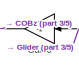
[diagram: root canvas - part 1/5, top center region]
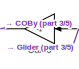
[diagram: root canvas - part 2/5, top center region]
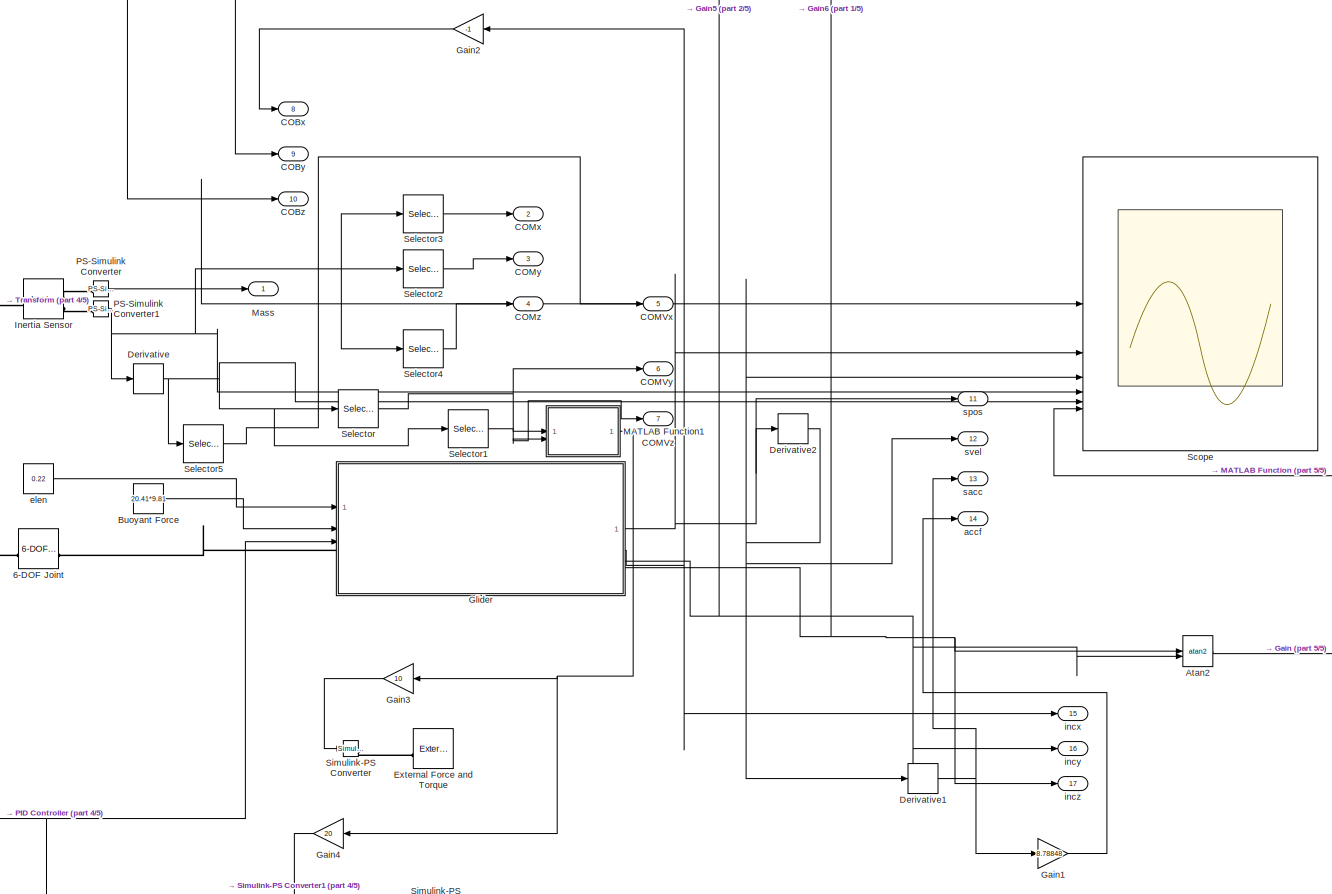
[diagram: root canvas - part 3/5, center side, full height]
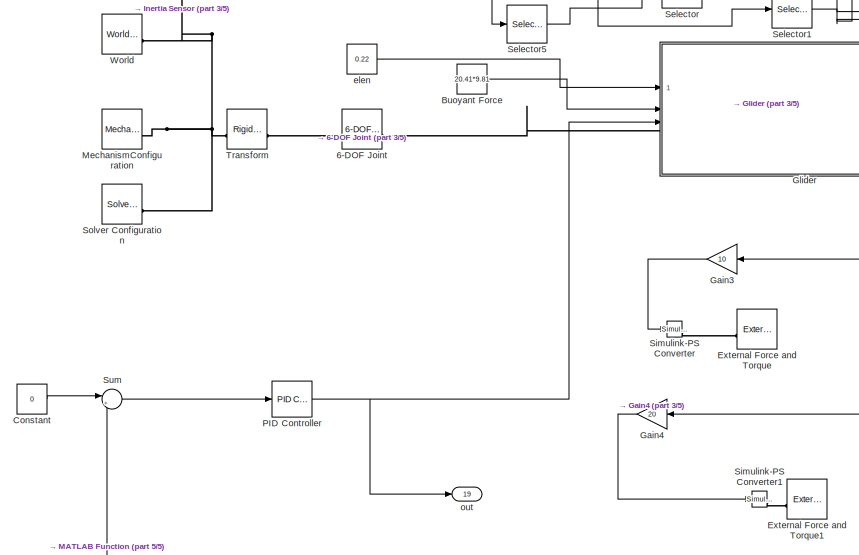
[diagram: root canvas - part 4/5, bottom left region]
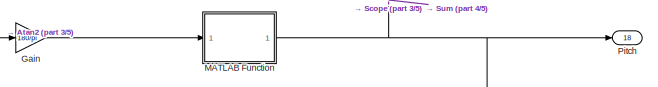
[diagram: root canvas - part 5/5, bottom right region]
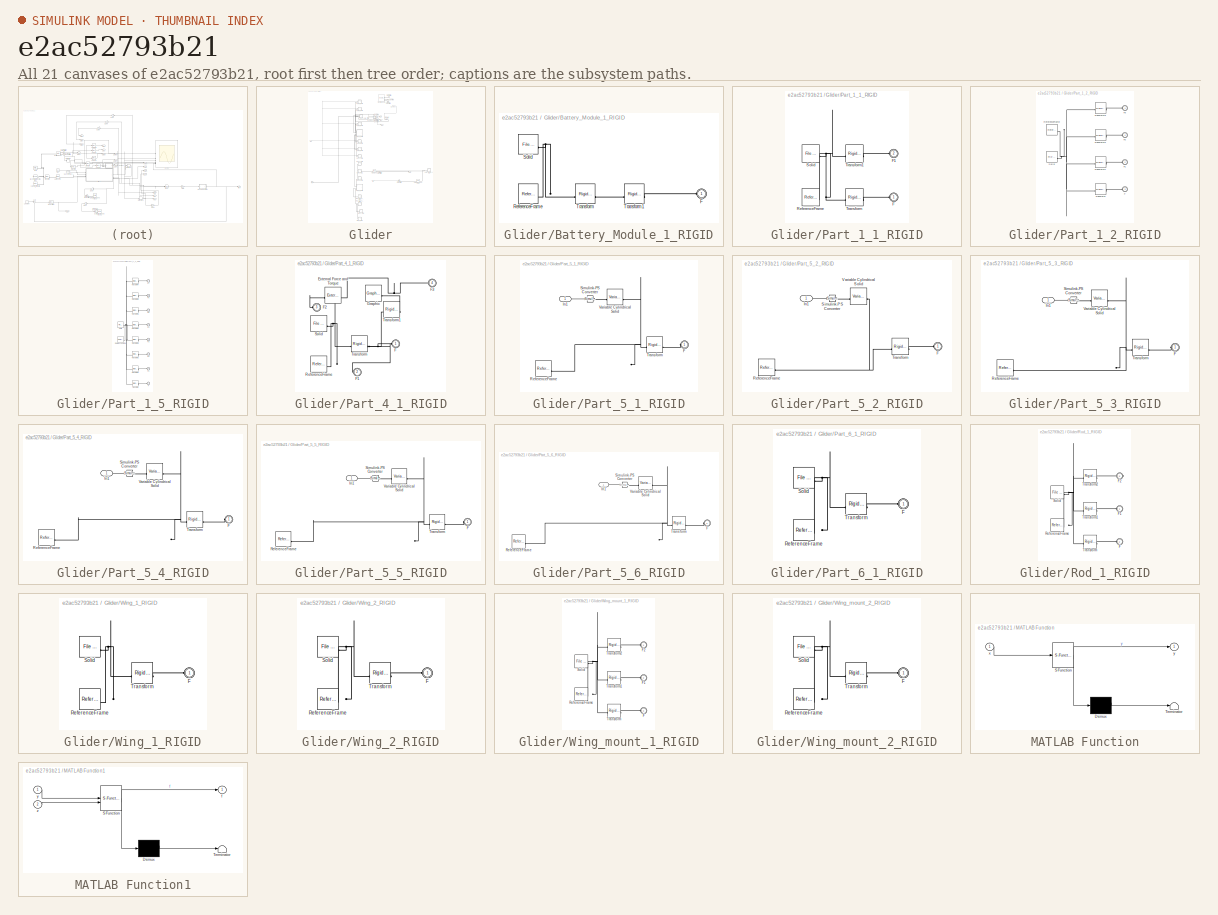
[diagram: thumbnail index - all 21 canvases of the model, root first then tree order]
MODEL slx_e2ac52793b21
KIND model
CONFIG AbsTol = auto
CONFIG EnableMultiTasking = off
CONFIG FixedStep = auto
CONFIG MaxStep = auto
CONFIG MinStep = auto
CONFIG RelTol = 1e-3
CONFIG SampleTimeConstraint = Unconstrained
CONFIG SolverName = VariableStepAuto
CONFIG StartTime = 0.0
CONFIG StopTime = 9
WORKSPACE source: external: MATLAB File  (data not in archive)
BLOCK [Reference] 6-DOF Joint  REF=sm_lib/Joints/6-DOF Joint
  SourceBlock = sm_lib/Joints/6-DOF Joint
  SourceType = 6-DOF Joint
BLOCK [Trigonometry] Atan2
  Operator = atan2
BLOCK [Constant] Buoyant Force
  Value = 20.41*9.81
BLOCK [Outport] COBx
  Port = 8
BLOCK [Outport] COBy
  Port = 9
BLOCK [Outport] COBz
  Port = 10
BLOCK [Outport] COMVx
  Port = 5
BLOCK [Outport] COMVy
  Port = 6
BLOCK [Outport] COMVz
  Port = 7
BLOCK [Outport] COMx
  Port = 2
BLOCK [Outport] COMy
  Port = 3
BLOCK [Outport] COMz
  Port = 4
BLOCK [Constant] Constant
  Value = 0
BLOCK [Derivative] Derivative
BLOCK [Derivative] Derivative1
BLOCK [Derivative] Derivative2
BLOCK [Reference] External Force and Torque  REF=sm_lib/Forces and
Torques/External Force
and Torque
  Commented = on
  SourceBlock = sm_lib/Forces and\nTorques/External Force\nand Torque
  SourceType = External Force\nand Torque
BLOCK [Reference] External Force and Torque1  REF=sm_lib/Forces and
Torques/External Force
and Torque
  Commented = on
  SourceBlock = sm_lib/Forces and\nTorques/External Force\nand Torque
  SourceType = External Force\nand Torque
BLOCK [Gain] Gain
  Gain = 180/pi
BLOCK [Gain] Gain1
  Gain = 8.78848
BLOCK [Gain] Gain2
  Gain = -1
  NameLocation = top
BLOCK [Gain] Gain3
  Commented = on
  Gain = 10
  NameLocation = top
BLOCK [Gain] Gain4
  Commented = on
  Gain = 20
  NameLocation = top
BLOCK [Gain] Gain5
  Gain = -1
  NameLocation = top
BLOCK [Gain] Gain6
  Gain = -1
  NameLocation = top
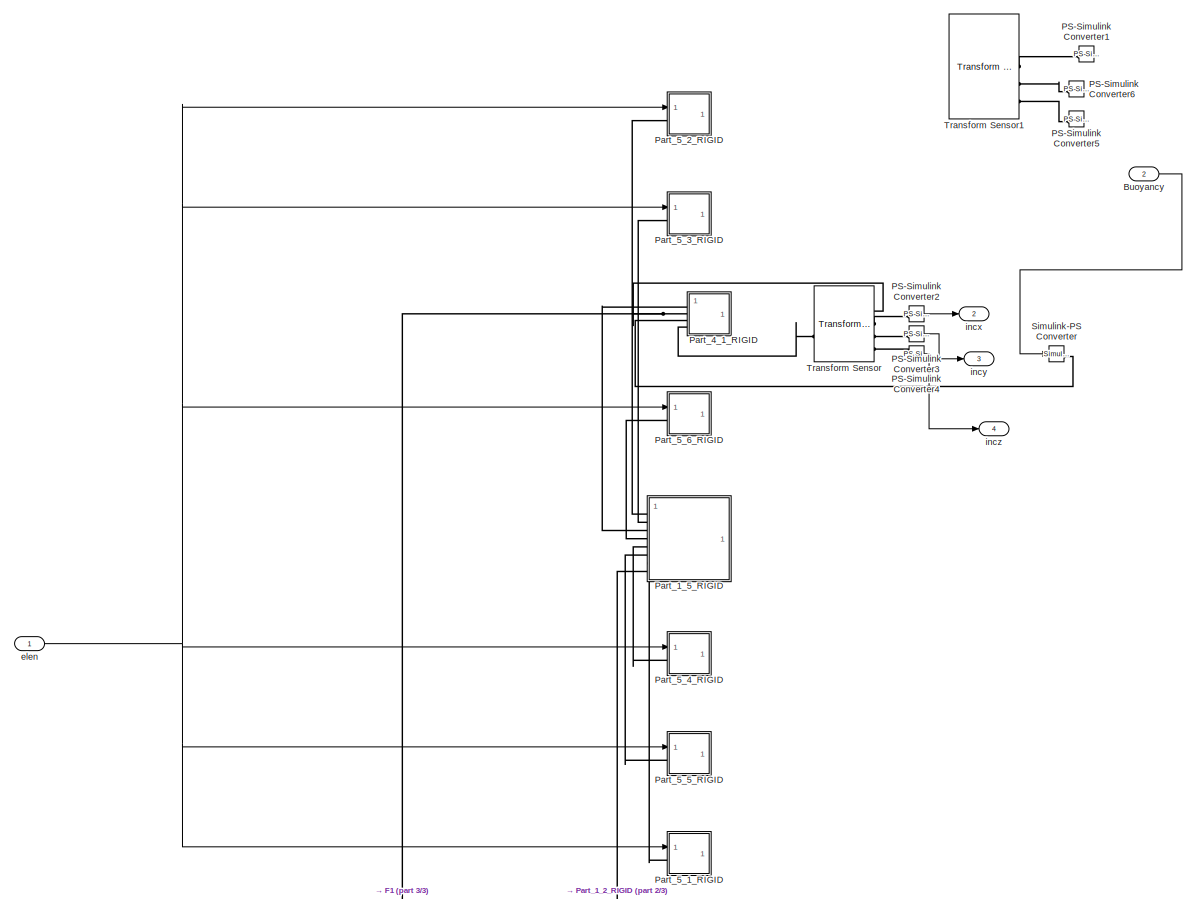
[diagram: Glider - part 1/3, top center region]
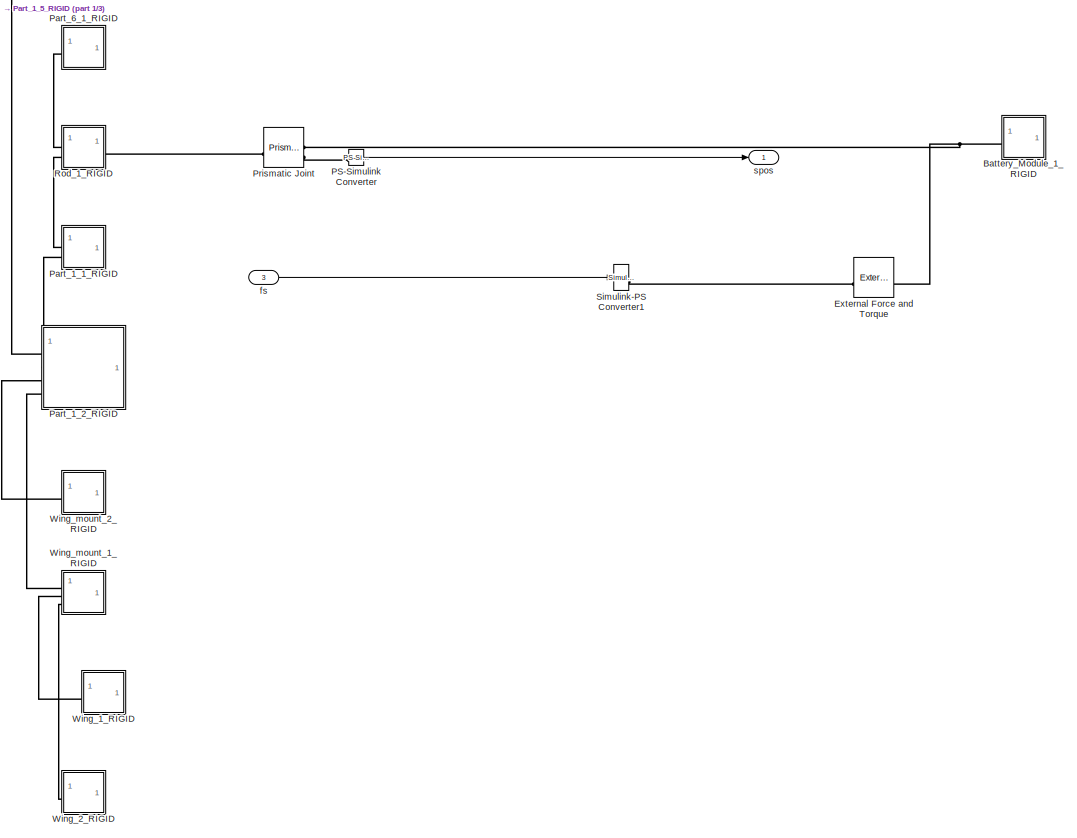
[diagram: Glider - part 2/3, bottom right region]
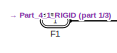
[diagram: Glider - part 3/3, bottom left region]
BLOCK [SubSystem] Glider
BLOCK [SubSystem] Glider/Battery_Module_1_RIGID
BLOCK [PMIOPort] Glider/Battery_Module_1_RIGID/F
  Side = Left
BLOCK [Reference] Glider/Battery_Module_1_RIGID/ReferenceFrame  REF=sm_lib/Frames and
Transforms/Reference
Frame
  SourceBlock = sm_lib/Frames and\nTransforms/Reference\nFrame
  SourceType = Reference\nFrame
BLOCK [Reference] Glider/Battery_Module_1_RIGID/Solid  REF=sm_lib/Body Elements/File Solid
  SourceBlock = sm_lib/Body Elements/File Solid
  SourceType = File Solid
BLOCK [Reference] Glider/Battery_Module_1_RIGID/Transform  REF=sm_lib/Frames and
Transforms/Rigid
Transform
  SourceBlock = sm_lib/Frames and\nTransforms/Rigid\nTransform
  SourceType = Rigid\nTransform
BLOCK [Reference] Glider/Battery_Module_1_RIGID/Transform1  REF=sm_lib/Frames and
Transforms/Rigid
Transform
  SourceBlock = sm_lib/Frames and\nTransforms/Rigid\nTransform
  SourceType = Rigid\nTransform
BLOCK [Inport] Glider/Buoyancy
  Port = 2
BLOCK [Reference] Glider/External Force and Torque  REF=sm_lib/Forces and
Torques/External Force
and Torque
  SourceBlock = sm_lib/Forces and\nTorques/External Force\nand Torque
  SourceType = External Force\nand Torque
BLOCK [PMIOPort] Glider/F1
  Side = Left
BLOCK [Reference] Glider/PS-Simulink Converter  REF=nesl_utility/PS-Simulink
Converter
  SourceBlock = nesl_utility/PS-Simulink\nConverter
  SourceType = PS-Simulink\nConverter
BLOCK [Reference] Glider/PS-Simulink Converter1  REF=nesl_utility/PS-Simulink
Converter
  Commented = on
  SourceBlock = nesl_utility/PS-Simulink\nConverter
  SourceType = PS-Simulink\nConverter
BLOCK [Reference] Glider/PS-Simulink Converter2  REF=nesl_utility/PS-Simulink
Converter
  SourceBlock = nesl_utility/PS-Simulink\nConverter
  SourceType = PS-Simulink\nConverter
BLOCK [Reference] Glider/PS-Simulink Converter3  REF=nesl_utility/PS-Simulink
Converter
  SourceBlock = nesl_utility/PS-Simulink\nConverter
  SourceType = PS-Simulink\nConverter
BLOCK [Reference] Glider/PS-Simulink Converter4  REF=nesl_utility/PS-Simulink
Converter
  SourceBlock = nesl_utility/PS-Simulink\nConverter
  SourceType = PS-Simulink\nConverter
BLOCK [Reference] Glider/PS-Simulink Converter5  REF=nesl_utility/PS-Simulink
Converter
  Commented = on
  SourceBlock = nesl_utility/PS-Simulink\nConverter
  SourceType = PS-Simulink\nConverter
BLOCK [Reference] Glider/PS-Simulink Converter6  REF=nesl_utility/PS-Simulink
Converter
  Commented = on
  SourceBlock = nesl_utility/PS-Simulink\nConverter
  SourceType = PS-Simulink\nConverter
BLOCK [SubSystem] Glider/Part_1_1_RIGID
BLOCK [PMIOPort] Glider/Part_1_1_RIGID/F
  Side = Left
BLOCK [PMIOPort] Glider/Part_1_1_RIGID/F1
  Port = 2
  Side = Left
BLOCK [Reference] Glider/Part_1_1_RIGID/ReferenceFrame  REF=sm_lib/Frames and
Transforms/Reference
Frame
  SourceBlock = sm_lib/Frames and\nTransforms/Reference\nFrame
  SourceType = Reference\nFrame
BLOCK [Reference] Glider/Part_1_1_RIGID/Solid  REF=sm_lib/Body Elements/File Solid
  SourceBlock = sm_lib/Body Elements/File Solid
  SourceType = File Solid
BLOCK [Reference] Glider/Part_1_1_RIGID/Transform  REF=sm_lib/Frames and
Transforms/Rigid
Transform
  SourceBlock = sm_lib/Frames and\nTransforms/Rigid\nTransform
  SourceType = Rigid\nTransform
BLOCK [Reference] Glider/Part_1_1_RIGID/Transform1  REF=sm_lib/Frames and
Transforms/Rigid
Transform
  SourceBlock = sm_lib/Frames and\nTransforms/Rigid\nTransform
  SourceType = Rigid\nTransform
BLOCK [SubSystem] Glider/Part_1_2_RIGID
BLOCK [PMIOPort] Glider/Part_1_2_RIGID/F
  Port = 3
  Side = Left
BLOCK [PMIOPort] Glider/Part_1_2_RIGID/F1
  Port = 2
  Side = Left
BLOCK [PMIOPort] Glider/Part_1_2_RIGID/F2
  Port = 4
  Side = Left
BLOCK [PMIOPort] Glider/Part_1_2_RIGID/F3
  Side = Left
BLOCK [Reference] Glider/Part_1_2_RIGID/ReferenceFrame  REF=sm_lib/Frames and
Transforms/Reference
Frame
  SourceBlock = sm_lib/Frames and\nTransforms/Reference\nFrame
  SourceType = Reference\nFrame
BLOCK [Reference] Glider/Part_1_2_RIGID/Solid  REF=sm_lib/Body Elements/File Solid
  SourceBlock = sm_lib/Body Elements/File Solid
  SourceType = File Solid
BLOCK [Reference] Glider/Part_1_2_RIGID/Transform  REF=sm_lib/Frames and
Transforms/Rigid
Transform
  SourceBlock = sm_lib/Frames and\nTransforms/Rigid\nTransform
  SourceType = Rigid\nTransform
BLOCK [Reference] Glider/Part_1_2_RIGID/Transform1  REF=sm_lib/Frames and
Transforms/Rigid
Transform
  SourceBlock = sm_lib/Frames and\nTransforms/Rigid\nTransform
  SourceType = Rigid\nTransform
BLOCK [Reference] Glider/Part_1_2_RIGID/Transform2  REF=sm_lib/Frames and
Transforms/Rigid
Transform
  SourceBlock = sm_lib/Frames and\nTransforms/Rigid\nTransform
  SourceType = Rigid\nTransform
BLOCK [Reference] Glider/Part_1_2_RIGID/Transform3  REF=sm_lib/Frames and
Transforms/Rigid
Transform
  SourceBlock = sm_lib/Frames and\nTransforms/Rigid\nTransform
  SourceType = Rigid\nTransform
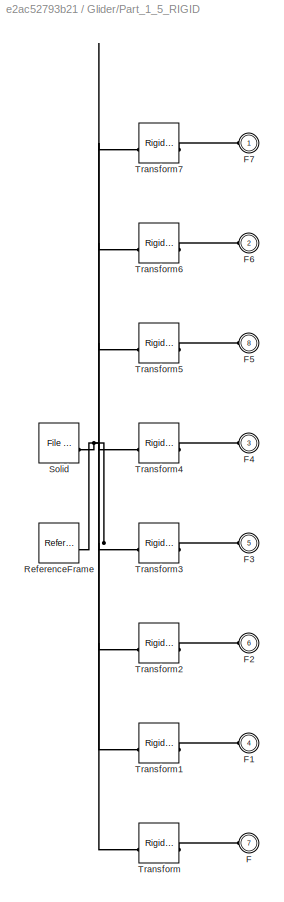
BLOCK [SubSystem] Glider/Part_1_5_RIGID
BLOCK [PMIOPort] Glider/Part_1_5_RIGID/F
  Port = 7
  Side = Left
BLOCK [PMIOPort] Glider/Part_1_5_RIGID/F1
  Port = 4
  Side = Left
BLOCK [PMIOPort] Glider/Part_1_5_RIGID/F2
  Port = 6
  Side = Left
BLOCK [PMIOPort] Glider/Part_1_5_RIGID/F3
  Port = 5
  Side = Left
BLOCK [PMIOPort] Glider/Part_1_5_RIGID/F4
  Port = 3
  Side = Left
BLOCK [PMIOPort] Glider/Part_1_5_RIGID/F5
  Port = 8
  Side = Left
BLOCK [PMIOPort] Glider/Part_1_5_RIGID/F6
  Port = 2
  Side = Left
BLOCK [PMIOPort] Glider/Part_1_5_RIGID/F7
  Side = Left
BLOCK [Reference] Glider/Part_1_5_RIGID/ReferenceFrame  REF=sm_lib/Frames and
Transforms/Reference
Frame
  SourceBlock = sm_lib/Frames and\nTransforms/Reference\nFrame
  SourceType = Reference\nFrame
BLOCK [Reference] Glider/Part_1_5_RIGID/Solid  REF=sm_lib/Body Elements/File Solid
  SourceBlock = sm_lib/Body Elements/File Solid
  SourceType = File Solid
BLOCK [Reference] Glider/Part_1_5_RIGID/Transform  REF=sm_lib/Frames and
Transforms/Rigid
Transform
  SourceBlock = sm_lib/Frames and\nTransforms/Rigid\nTransform
  SourceType = Rigid\nTransform
BLOCK [Reference] Glider/Part_1_5_RIGID/Transform1  REF=sm_lib/Frames and
Transforms/Rigid
Transform
  SourceBlock = sm_lib/Frames and\nTransforms/Rigid\nTransform
  SourceType = Rigid\nTransform
BLOCK [Reference] Glider/Part_1_5_RIGID/Transform2  REF=sm_lib/Frames and
Transforms/Rigid
Transform
  SourceBlock = sm_lib/Frames and\nTransforms/Rigid\nTransform
  SourceType = Rigid\nTransform
BLOCK [Reference] Glider/Part_1_5_RIGID/Transform3  REF=sm_lib/Frames and
Transforms/Rigid
Transform
  SourceBlock = sm_lib/Frames and\nTransforms/Rigid\nTransform
  SourceType = Rigid\nTransform
BLOCK [Reference] Glider/Part_1_5_RIGID/Transform4  REF=sm_lib/Frames and
Transforms/Rigid
Transform
  SourceBlock = sm_lib/Frames and\nTransforms/Rigid\nTransform
  SourceType = Rigid\nTransform
BLOCK [Reference] Glider/Part_1_5_RIGID/Transform5  REF=sm_lib/Frames and
Transforms/Rigid
Transform
  SourceBlock = sm_lib/Frames and\nTransforms/Rigid\nTransform
  SourceType = Rigid\nTransform
BLOCK [Reference] Glider/Part_1_5_RIGID/Transform6  REF=sm_lib/Frames and
Transforms/Rigid
Transform
  SourceBlock = sm_lib/Frames and\nTransforms/Rigid\nTransform
  SourceType = Rigid\nTransform
BLOCK [Reference] Glider/Part_1_5_RIGID/Transform7  REF=sm_lib/Frames and
Transforms/Rigid
Transform
  SourceBlock = sm_lib/Frames and\nTransforms/Rigid\nTransform
  SourceType = Rigid\nTransform
BLOCK [SubSystem] Glider/Part_4_1_RIGID
BLOCK [Reference] Glider/Part_4_1_RIGID/External Force and Torque  REF=sm_lib/Forces and
Torques/External Force
and Torque
  SourceBlock = sm_lib/Forces and\nTorques/External Force\nand Torque
  SourceType = External Force\nand Torque
BLOCK [PMIOPort] Glider/Part_4_1_RIGID/F
  Side = Left
BLOCK [PMIOPort] Glider/Part_4_1_RIGID/F1
  Port = 2
  Side = Left
BLOCK [PMIOPort] Glider/Part_4_1_RIGID/F2
  Port = 3
  Side = Left
BLOCK [PMIOPort] Glider/Part_4_1_RIGID/F3
  Port = 4
  Side = Left
BLOCK [Reference] Glider/Part_4_1_RIGID/Graphic  REF=sm_lib/Body Elements/Graphic
  SourceBlock = sm_lib/Body Elements/Graphic
  SourceType = Graphic
BLOCK [Reference] Glider/Part_4_1_RIGID/ReferenceFrame  REF=sm_lib/Frames and
Transforms/Reference
Frame
  SourceBlock = sm_lib/Frames and\nTransforms/Reference\nFrame
  SourceType = Reference\nFrame
BLOCK [Reference] Glider/Part_4_1_RIGID/Solid  REF=sm_lib/Body Elements/File Solid
  SourceBlock = sm_lib/Body Elements/File Solid
  SourceType = File Solid
BLOCK [Reference] Glider/Part_4_1_RIGID/Transform  REF=sm_lib/Frames and
Transforms/Rigid
Transform
  SourceBlock = sm_lib/Frames and\nTransforms/Rigid\nTransform
  SourceType = Rigid\nTransform
BLOCK [Reference] Glider/Part_4_1_RIGID/Transform1  REF=sm_lib/Frames and
Transforms/Rigid
Transform
  SourceBlock = sm_lib/Frames and\nTransforms/Rigid\nTransform
  SourceType = Rigid\nTransform
BLOCK [SubSystem] Glider/Part_5_1_RIGID
BLOCK [PMIOPort] Glider/Part_5_1_RIGID/F
  Side = Left
BLOCK [Inport] Glider/Part_5_1_RIGID/In1
BLOCK [Reference] Glider/Part_5_1_RIGID/ReferenceFrame  REF=sm_lib/Frames and
Transforms/Reference
Frame
  SourceBlock = sm_lib/Frames and\nTransforms/Reference\nFrame
  SourceType = Reference\nFrame
BLOCK [Reference] Glider/Part_5_1_RIGID/Simulink-PS Converter  REF=nesl_utility/Simulink-PS
Converter
  SourceBlock = nesl_utility/Simulink-PS\nConverter
  SourceType = Simulink-PS\nConverter
BLOCK [Reference] Glider/Part_5_1_RIGID/Transform  REF=sm_lib/Frames and
Transforms/Rigid
Transform
  SourceBlock = sm_lib/Frames and\nTransforms/Rigid\nTransform
  SourceType = Rigid\nTransform
BLOCK [Reference] Glider/Part_5_1_RIGID/Variable Cylindrical Solid  REF=sm_lib/Body Elements/Variable Mass/Variable
Cylindrical Solid
  SourceBlock = sm_lib/Body Elements/Variable Mass/Variable\nCylindrical Solid
  SourceType = Variable\nCylindrical Solid
BLOCK [SubSystem] Glider/Part_5_2_RIGID
BLOCK [PMIOPort] Glider/Part_5_2_RIGID/F
  Side = Left
BLOCK [Inport] Glider/Part_5_2_RIGID/In1
BLOCK [Reference] Glider/Part_5_2_RIGID/ReferenceFrame  REF=sm_lib/Frames and
Transforms/Reference
Frame
  SourceBlock = sm_lib/Frames and\nTransforms/Reference\nFrame
  SourceType = Reference\nFrame
BLOCK [Reference] Glider/Part_5_2_RIGID/Simulink-PS Converter  REF=nesl_utility/Simulink-PS
Converter
  SourceBlock = nesl_utility/Simulink-PS\nConverter
  SourceType = Simulink-PS\nConverter
BLOCK [Reference] Glider/Part_5_2_RIGID/Transform  REF=sm_lib/Frames and
Transforms/Rigid
Transform
  SourceBlock = sm_lib/Frames and\nTransforms/Rigid\nTransform
  SourceType = Rigid\nTransform
BLOCK [Reference] Glider/Part_5_2_RIGID/Variable Cylindrical Solid  REF=sm_lib/Body Elements/Variable Mass/Variable
Cylindrical Solid
  SourceBlock = sm_lib/Body Elements/Variable Mass/Variable\nCylindrical Solid
  SourceType = Variable\nCylindrical Solid
BLOCK [SubSystem] Glider/Part_5_3_RIGID
BLOCK [PMIOPort] Glider/Part_5_3_RIGID/F
  Side = Left
BLOCK [Inport] Glider/Part_5_3_RIGID/In1
BLOCK [Reference] Glider/Part_5_3_RIGID/ReferenceFrame  REF=sm_lib/Frames and
Transforms/Reference
Frame
  SourceBlock = sm_lib/Frames and\nTransforms/Reference\nFrame
  SourceType = Reference\nFrame
BLOCK [Reference] Glider/Part_5_3_RIGID/Simulink-PS Converter  REF=nesl_utility/Simulink-PS
Converter
  SourceBlock = nesl_utility/Simulink-PS\nConverter
  SourceType = Simulink-PS\nConverter
BLOCK [Reference] Glider/Part_5_3_RIGID/Transform  REF=sm_lib/Frames and
Transforms/Rigid
Transform
  SourceBlock = sm_lib/Frames and\nTransforms/Rigid\nTransform
  SourceType = Rigid\nTransform
BLOCK [Reference] Glider/Part_5_3_RIGID/Variable Cylindrical Solid  REF=sm_lib/Body Elements/Variable Mass/Variable
Cylindrical Solid
  SourceBlock = sm_lib/Body Elements/Variable Mass/Variable\nCylindrical Solid
  SourceType = Variable\nCylindrical Solid
BLOCK [SubSystem] Glider/Part_5_4_RIGID
BLOCK [PMIOPort] Glider/Part_5_4_RIGID/F
  Side = Left
BLOCK [Inport] Glider/Part_5_4_RIGID/In1
BLOCK [Reference] Glider/Part_5_4_RIGID/ReferenceFrame  REF=sm_lib/Frames and
Transforms/Reference
Frame
  SourceBlock = sm_lib/Frames and\nTransforms/Reference\nFrame
  SourceType = Reference\nFrame
BLOCK [Reference] Glider/Part_5_4_RIGID/Simulink-PS Converter  REF=nesl_utility/Simulink-PS
Converter
  SourceBlock = nesl_utility/Simulink-PS\nConverter
  SourceType = Simulink-PS\nConverter
BLOCK [Reference] Glider/Part_5_4_RIGID/Transform  REF=sm_lib/Frames and
Transforms/Rigid
Transform
  SourceBlock = sm_lib/Frames and\nTransforms/Rigid\nTransform
  SourceType = Rigid\nTransform
BLOCK [Reference] Glider/Part_5_4_RIGID/Variable Cylindrical Solid  REF=sm_lib/Body Elements/Variable Mass/Variable
Cylindrical Solid
  SourceBlock = sm_lib/Body Elements/Variable Mass/Variable\nCylindrical Solid
  SourceType = Variable\nCylindrical Solid
BLOCK [SubSystem] Glider/Part_5_5_RIGID
BLOCK [PMIOPort] Glider/Part_5_5_RIGID/F
  Side = Left
BLOCK [Inport] Glider/Part_5_5_RIGID/In1
BLOCK [Reference] Glider/Part_5_5_RIGID/ReferenceFrame  REF=sm_lib/Frames and
Transforms/Reference
Frame
  SourceBlock = sm_lib/Frames and\nTransforms/Reference\nFrame
  SourceType = Reference\nFrame
BLOCK [Reference] Glider/Part_5_5_RIGID/Simulink-PS Converter  REF=nesl_utility/Simulink-PS
Converter
  SourceBlock = nesl_utility/Simulink-PS\nConverter
  SourceType = Simulink-PS\nConverter
BLOCK [Reference] Glider/Part_5_5_RIGID/Transform  REF=sm_lib/Frames and
Transforms/Rigid
Transform
  SourceBlock = sm_lib/Frames and\nTransforms/Rigid\nTransform
  SourceType = Rigid\nTransform
BLOCK [Reference] Glider/Part_5_5_RIGID/Variable Cylindrical Solid  REF=sm_lib/Body Elements/Variable Mass/Variable
Cylindrical Solid
  SourceBlock = sm_lib/Body Elements/Variable Mass/Variable\nCylindrical Solid
  SourceType = Variable\nCylindrical Solid
BLOCK [SubSystem] Glider/Part_5_6_RIGID
BLOCK [PMIOPort] Glider/Part_5_6_RIGID/F
  Side = Left
BLOCK [Inport] Glider/Part_5_6_RIGID/In1
BLOCK [Reference] Glider/Part_5_6_RIGID/ReferenceFrame  REF=sm_lib/Frames and
Transforms/Reference
Frame
  SourceBlock = sm_lib/Frames and\nTransforms/Reference\nFrame
  SourceType = Reference\nFrame
BLOCK [Reference] Glider/Part_5_6_RIGID/Simulink-PS Converter  REF=nesl_utility/Simulink-PS
Converter
  SourceBlock = nesl_utility/Simulink-PS\nConverter
  SourceType = Simulink-PS\nConverter
BLOCK [Reference] Glider/Part_5_6_RIGID/Transform  REF=sm_lib/Frames and
Transforms/Rigid
Transform
  SourceBlock = sm_lib/Frames and\nTransforms/Rigid\nTransform
  SourceType = Rigid\nTransform
BLOCK [Reference] Glider/Part_5_6_RIGID/Variable Cylindrical Solid  REF=sm_lib/Body Elements/Variable Mass/Variable
Cylindrical Solid
  SourceBlock = sm_lib/Body Elements/Variable Mass/Variable\nCylindrical Solid
  SourceType = Variable\nCylindrical Solid
BLOCK [SubSystem] Glider/Part_6_1_RIGID
BLOCK [PMIOPort] Glider/Part_6_1_RIGID/F
  Side = Left
BLOCK [Reference] Glider/Part_6_1_RIGID/ReferenceFrame  REF=sm_lib/Frames and
Transforms/Reference
Frame
  SourceBlock = sm_lib/Frames and\nTransforms/Reference\nFrame
  SourceType = Reference\nFrame
BLOCK [Reference] Glider/Part_6_1_RIGID/Solid  REF=sm_lib/Body Elements/File Solid
  SourceBlock = sm_lib/Body Elements/File Solid
  SourceType = File Solid
BLOCK [Reference] Glider/Part_6_1_RIGID/Transform  REF=sm_lib/Frames and
Transforms/Rigid
Transform
  SourceBlock = sm_lib/Frames and\nTransforms/Rigid\nTransform
  SourceType = Rigid\nTransform
BLOCK [Reference] Glider/Prismatic Joint  REF=sm_lib/Joints/Prismatic
Joint
  SourceBlock = sm_lib/Joints/Prismatic\nJoint
  SourceType = Prismatic\nJoint
BLOCK [SubSystem] Glider/Rod_1_RIGID
BLOCK [PMIOPort] Glider/Rod_1_RIGID/F
  Port = 2
  Side = Left
BLOCK [PMIOPort] Glider/Rod_1_RIGID/F1
  Side = Left
BLOCK [PMIOPort] Glider/Rod_1_RIGID/F2
  Port = 3
  Side = Right
BLOCK [Reference] Glider/Rod_1_RIGID/ReferenceFrame  REF=sm_lib/Frames and
Transforms/Reference
Frame
  SourceBlock = sm_lib/Frames and\nTransforms/Reference\nFrame
  SourceType = Reference\nFrame
BLOCK [Reference] Glider/Rod_1_RIGID/Solid  REF=sm_lib/Body Elements/File Solid
  SourceBlock = sm_lib/Body Elements/File Solid
  SourceType = File Solid
BLOCK [Reference] Glider/Rod_1_RIGID/Transform  REF=sm_lib/Frames and
Transforms/Rigid
Transform
  SourceBlock = sm_lib/Frames and\nTransforms/Rigid\nTransform
  SourceType = Rigid\nTransform
BLOCK [Reference] Glider/Rod_1_RIGID/Transform1  REF=sm_lib/Frames and
Transforms/Rigid
Transform
  SourceBlock = sm_lib/Frames and\nTransforms/Rigid\nTransform
  SourceType = Rigid\nTransform
BLOCK [Reference] Glider/Rod_1_RIGID/Transform2  REF=sm_lib/Frames and
Transforms/Rigid
Transform
  SourceBlock = sm_lib/Frames and\nTransforms/Rigid\nTransform
  SourceType = Rigid\nTransform
BLOCK [Reference] Glider/Simulink-PS Converter  REF=nesl_utility/Simulink-PS
Converter
  SourceBlock = nesl_utility/Simulink-PS\nConverter
  SourceType = Simulink-PS\nConverter
BLOCK [Reference] Glider/Simulink-PS Converter1  REF=nesl_utility/Simulink-PS
Converter
  SourceBlock = nesl_utility/Simulink-PS\nConverter
  SourceType = Simulink-PS\nConverter
BLOCK [Reference] Glider/Transform Sensor  REF=sm_lib/Frames and
Transforms/Transform
Sensor
  SourceBlock = sm_lib/Frames and\nTransforms/Transform\nSensor
  SourceType = Transform\nSensor
BLOCK [Reference] Glider/Transform Sensor1  REF=sm_lib/Frames and
Transforms/Transform
Sensor
  Commented = on
  SourceBlock = sm_lib/Frames and\nTransforms/Transform\nSensor
  SourceType = Transform\nSensor
BLOCK [SubSystem] Glider/Wing_1_RIGID
BLOCK [PMIOPort] Glider/Wing_1_RIGID/F
  Side = Left
BLOCK [Reference] Glider/Wing_1_RIGID/ReferenceFrame  REF=sm_lib/Frames and
Transforms/Reference
Frame
  SourceBlock = sm_lib/Frames and\nTransforms/Reference\nFrame
  SourceType = Reference\nFrame
BLOCK [Reference] Glider/Wing_1_RIGID/Solid  REF=sm_lib/Body Elements/File Solid
  SourceBlock = sm_lib/Body Elements/File Solid
  SourceType = File Solid
BLOCK [Reference] Glider/Wing_1_RIGID/Transform  REF=sm_lib/Frames and
Transforms/Rigid
Transform
  SourceBlock = sm_lib/Frames and\nTransforms/Rigid\nTransform
  SourceType = Rigid\nTransform
BLOCK [SubSystem] Glider/Wing_2_RIGID
BLOCK [PMIOPort] Glider/Wing_2_RIGID/F
  Side = Left
BLOCK [Reference] Glider/Wing_2_RIGID/ReferenceFrame  REF=sm_lib/Frames and
Transforms/Reference
Frame
  SourceBlock = sm_lib/Frames and\nTransforms/Reference\nFrame
  SourceType = Reference\nFrame
BLOCK [Reference] Glider/Wing_2_RIGID/Solid  REF=sm_lib/Body Elements/File Solid
  SourceBlock = sm_lib/Body Elements/File Solid
  SourceType = File Solid
BLOCK [Reference] Glider/Wing_2_RIGID/Transform  REF=sm_lib/Frames and
Transforms/Rigid
Transform
  SourceBlock = sm_lib/Frames and\nTransforms/Rigid\nTransform
  SourceType = Rigid\nTransform
BLOCK [SubSystem] Glider/Wing_mount_1_RIGID
BLOCK [PMIOPort] Glider/Wing_mount_1_RIGID/F
  Port = 3
  Side = Left
BLOCK [PMIOPort] Glider/Wing_mount_1_RIGID/F1
  Port = 2
  Side = Left
BLOCK [PMIOPort] Glider/Wing_mount_1_RIGID/F2
  Side = Left
BLOCK [Reference] Glider/Wing_mount_1_RIGID/ReferenceFrame  REF=sm_lib/Frames and
Transforms/Reference
Frame
  SourceBlock = sm_lib/Frames and\nTransforms/Reference\nFrame
  SourceType = Reference\nFrame
BLOCK [Reference] Glider/Wing_mount_1_RIGID/Solid  REF=sm_lib/Body Elements/File Solid
  SourceBlock = sm_lib/Body Elements/File Solid
  SourceType = File Solid
BLOCK [Reference] Glider/Wing_mount_1_RIGID/Transform  REF=sm_lib/Frames and
Transforms/Rigid
Transform
  SourceBlock = sm_lib/Frames and\nTransforms/Rigid\nTransform
  SourceType = Rigid\nTransform
BLOCK [Reference] Glider/Wing_mount_1_RIGID/Transform1  REF=sm_lib/Frames and
Transforms/Rigid
Transform
  SourceBlock = sm_lib/Frames and\nTransforms/Rigid\nTransform
  SourceType = Rigid\nTransform
BLOCK [Reference] Glider/Wing_mount_1_RIGID/Transform2  REF=sm_lib/Frames and
Transforms/Rigid
Transform
  SourceBlock = sm_lib/Frames and\nTransforms/Rigid\nTransform
  SourceType = Rigid\nTransform
BLOCK [SubSystem] Glider/Wing_mount_2_RIGID
BLOCK [PMIOPort] Glider/Wing_mount_2_RIGID/F
  Side = Left
BLOCK [Reference] Glider/Wing_mount_2_RIGID/ReferenceFrame  REF=sm_lib/Frames and
Transforms/Reference
Frame
  SourceBlock = sm_lib/Frames and\nTransforms/Reference\nFrame
  SourceType = Reference\nFrame
BLOCK [Reference] Glider/Wing_mount_2_RIGID/Solid  REF=sm_lib/Body Elements/File Solid
  SourceBlock = sm_lib/Body Elements/File Solid
  SourceType = File Solid
BLOCK [Reference] Glider/Wing_mount_2_RIGID/Transform  REF=sm_lib/Frames and
Transforms/Rigid
Transform
  SourceBlock = sm_lib/Frames and\nTransforms/Rigid\nTransform
  SourceType = Rigid\nTransform
BLOCK [Inport] Glider/elen
BLOCK [Inport] Glider/fs
  Port = 3
BLOCK [Outport] Glider/incx
  Port = 2
BLOCK [Outport] Glider/incy
  Port = 3
BLOCK [Outport] Glider/incz
  Port = 4
BLOCK [Outport] Glider/spos
BLOCK [Reference] Inertia Sensor  REF=sm_lib/Body Elements/Inertia Sensor
  SourceBlock = sm_lib/Body Elements/Inertia Sensor
  SourceType = Inertia Sensor
BLOCK [SubSystem] MATLAB Function
  ErrorFcn = Stateflow.Translate.translate
  LibrarySourceBlock = simulink/User-Defined\nFunctions/MATLAB Function
  PermitHierarchicalResolution = ExplicitOnly
  SFBlockType = MATLAB Function
  TreatAsAtomicUnit = on
BLOCK [Demux] MATLAB Function/ Demux 
  Outputs = 1
BLOCK [S-Function] MATLAB Function/ SFunction 
  EnableBusSupport = on
  FunctionName = sf_sfun
  PortCounts = [1 2]
  SFcnIsStateOwnerBlock = off
  SFunctionDeploymentMode = off
  Tag = Stateflow S-Function 1
BLOCK [Terminator] MATLAB Function/ Terminator 
BLOCK [Inport] MATLAB Function/x
BLOCK [Outport] MATLAB Function/y
BLOCK [SubSystem] MATLAB Function1
  ErrorFcn = Stateflow.Translate.translate
  LibrarySourceBlock = simulink/User-Defined\nFunctions/MATLAB Function
  PermitHierarchicalResolution = ExplicitOnly
  SFBlockType = MATLAB Function
  TreatAsAtomicUnit = on
BLOCK [Demux] MATLAB Function1/ Demux 
  Outputs = 1
BLOCK [S-Function] MATLAB Function1/ SFunction 
  EnableBusSupport = on
  FunctionName = sf_sfun
  PortCounts = [2 2]
  SFcnIsStateOwnerBlock = off
  SFunctionDeploymentMode = off
  Tag = Stateflow S-Function 4
BLOCK [Terminator] MATLAB Function1/ Terminator 
BLOCK [Outport] MATLAB Function1/f
BLOCK [Inport] MATLAB Function1/y
BLOCK [Inport] MATLAB Function1/z
  Port = 2
BLOCK [Outport] Mass
BLOCK [Reference] MechanismConfiguration  REF=sm_lib/Utilities/Mechanism
Configuration
  SourceBlock = sm_lib/Utilities/Mechanism\nConfiguration
  SourceType = Mechanism\nConfiguration
BLOCK [Reference] PID Controller  REF=slpidlib/PID Controller
  LibrarySourceBlock = simulink/Continuous/PID Controller
  SourceBlock = slpidlib/PID Controller
  SourceType = PID 1dof
BLOCK [Reference] PS-Simulink Converter  REF=nesl_utility/PS-Simulink
Converter
  SourceBlock = nesl_utility/PS-Simulink\nConverter
  SourceType = PS-Simulink\nConverter
BLOCK [Reference] PS-Simulink Converter1  REF=nesl_utility/PS-Simulink
Converter
  SourceBlock = nesl_utility/PS-Simulink\nConverter
  SourceType = PS-Simulink\nConverter
BLOCK [Outport] Pitch
  Port = 18
BLOCK [Scope] Scope
  Floating = off
  NumInputPorts = 6
  ScopeSpecificationString = Simulink.scopes.TimeScopeBlockCfg('CurrentConfiguration', extmgr.ConfigurationSet(extmgr.Configuration('Core','General UI',true),extmgr.Configuration('Core','Source UI',true),extmgr.Configuration('Sources','WiredSimulink',true),extmgr.Configuration('Visuals','Time Domain',true,'SerializedDisplays',{struct('MinYLimReal','-12.48603','MaxYLimReal','112.37427','YLabelReal','','MinYLimMag','0.00000','M...<+2000ch>
BLOCK [Selector] Selector
  IndexOptions = Index vector (dialog)
  Indices = 2
  InputPortWidth = 3
  OutputSizes = 1
BLOCK [Selector] Selector1
  IndexOptions = Index vector (dialog)
  Indices = 3
  InputPortWidth = 3
  OutputSizes = 1
BLOCK [Selector] Selector2
  IndexOptions = Index vector (dialog)
  Indices = 2
  InputPortWidth = 3
  OutputSizes = 1
BLOCK [Selector] Selector3
  IndexOptions = Index vector (dialog)
  Indices = 1
  InputPortWidth = 3
  OutputSizes = 1
BLOCK [Selector] Selector4
  IndexOptions = Index vector (dialog)
  Indices = 3
  InputPortWidth = 3
  OutputSizes = 1
BLOCK [Selector] Selector5
  IndexOptions = Index vector (dialog)
  Indices = 1
  InputPortWidth = 3
  OutputSizes = 1
BLOCK [Reference] Simulink-PS Converter  REF=nesl_utility/Simulink-PS
Converter
  Commented = on
  SourceBlock = nesl_utility/Simulink-PS\nConverter
  SourceType = Simulink-PS\nConverter
BLOCK [Reference] Simulink-PS Converter1  REF=nesl_utility/Simulink-PS
Converter
  Commented = on
  SourceBlock = nesl_utility/Simulink-PS\nConverter
  SourceType = Simulink-PS\nConverter
BLOCK [Reference] Solver Configuration  REF=nesl_utility/Solver
Configuration
  SourceBlock = nesl_utility/Solver\nConfiguration
  SourceType = Solver\nConfiguration
BLOCK [Sum] Sum
  Inputs = |+-
BLOCK [Reference] Transform  REF=sm_lib/Frames and
Transforms/Rigid
Transform
  SourceBlock = sm_lib/Frames and\nTransforms/Rigid\nTransform
  SourceType = Rigid\nTransform
BLOCK [Reference] World  REF=sm_lib/Frames and
Transforms/World Frame
  SourceBlock = sm_lib/Frames and\nTransforms/World Frame
  SourceType = World Frame
BLOCK [Outport] accf
  Port = 14
BLOCK [Constant] elen
  Value = 0.22
BLOCK [Outport] incx
  Port = 15
BLOCK [Outport] incy
  Port = 16
BLOCK [Outport] incz
  Port = 17
BLOCK [Outport] out
  Port = 19
BLOCK [Outport] sacc
  Port = 13
BLOCK [Outport] spos
  Port = 11
BLOCK [Outport] svel
  Port = 12
LINE Atan2:1 -> Gain:1
LINE Buoyant Force:1 -> Glider:2
LINE Constant:1 -> Sum:1
NET Derivative1:1 -> Gain1:1, sacc:1
NET Derivative2:1 -> Derivative1:1, Scope:3, svel:1
NET Derivative:1 -> Scope:5, Selector1:1, Selector5:1, Selector:1
LINE Gain1:1 -> accf:1
LINE Gain2:1 -> COBx:1
LINE Gain3:1 -> Simulink-PS Converter:1
LINE Gain4:1 -> Simulink-PS Converter1:1
LINE Gain5:1 -> COBy:1
LINE Gain6:1 -> COBz:1
LINE Gain:1 -> MATLAB Function:1
LINE Glider/Buoyancy:1 -> Glider/Simulink-PS Converter:1
LINE Glider/PS-Simulink Converter2:1 -> Glider/incx:1
LINE Glider/PS-Simulink Converter3:1 -> Glider/incy:1
LINE Glider/PS-Simulink Converter4:1 -> Glider/incz:1
LINE Glider/PS-Simulink Converter:1 -> Glider/spos:1
LINE Glider/Part_5_1_RIGID/In1:1 -> Glider/Part_5_1_RIGID/Simulink-PS Converter:1
LINE Glider/Part_5_2_RIGID/In1:1 -> Glider/Part_5_2_RIGID/Simulink-PS Converter:1
LINE Glider/Part_5_3_RIGID/In1:1 -> Glider/Part_5_3_RIGID/Simulink-PS Converter:1
LINE Glider/Part_5_4_RIGID/In1:1 -> Glider/Part_5_4_RIGID/Simulink-PS Converter:1
LINE Glider/Part_5_5_RIGID/In1:1 -> Glider/Part_5_5_RIGID/Simulink-PS Converter:1
LINE Glider/Part_5_6_RIGID/In1:1 -> Glider/Part_5_6_RIGID/Simulink-PS Converter:1
NET Glider/elen:1 -> Glider/Part_5_1_RIGID:1, Glider/Part_5_2_RIGID:1, Glider/Part_5_3_RIGID:1, Glider/Part_5_4_RIGID:1, Glider/Part_5_5_RIGID:1, Glider/Part_5_6_RIGID:1
LINE Glider/fs:1 -> Glider/Simulink-PS Converter1:1
NET Glider:1 -> Derivative2:1, Scope:2, spos:1
NET Glider:2 -> Gain2:1, incx:1
NET Glider:3 -> Atan2:2, Gain5:1, incy:1
NET Glider:4 -> Atan2:1, Gain6:1, incz:1
NET MATLAB Function1:1 -> Gain3:1, Gain4:1
NET MATLAB Function:1 -> Pitch:1, Scope:6, Sum:2
NET PID Controller:1 -> Glider:3, out:1
NET PS-Simulink Converter1:1 -> Derivative:1, Scope:4, Selector2:1, Selector3:1, Selector4:1
NET PS-Simulink Converter:1 -> Mass:1, Scope:1
NET Selector1:1 -> COMVz:1, MATLAB Function1:2
LINE Selector2:1 -> COMy:1
LINE Selector3:1 -> COMx:1
LINE Selector4:1 -> COMz:1
LINE Selector5:1 -> COMVx:1
NET Selector:1 -> COMVy:1, MATLAB Function1:1
LINE Sum:1 -> PID Controller:1
LINE elen:1 -> Glider:1
PLINE 6-DOF Joint:LConn1 -- Transform:RConn1
PLINE 6-DOF Joint:RConn1 -- Glider:LConn1
PLINE External Force and Torque1:LConn1 -- Simulink-PS Converter1:RConn1
PLINE External Force and Torque:LConn1 -- Simulink-PS Converter:RConn1
PLINE Glider/Battery_Module_1_RIGID/F:RConn1 -- Glider/Battery_Module_1_RIGID/Transform1:RConn1
PNET net1: Glider/Battery_Module_1_RIGID/ReferenceFrame:RConn1 -- Glider/Battery_Module_1_RIGID/Solid:RConn1 -- Glider/Battery_Module_1_RIGID/Transform:LConn1
PLINE Glider/Battery_Module_1_RIGID/Transform1:LConn1 -- Glider/Battery_Module_1_RIGID/Transform:RConn1
PNET net2: Glider/Battery_Module_1_RIGID:LConn1 -- Glider/External Force and Torque:RConn1 -- Glider/Prismatic Joint:RConn1
PLINE Glider/External Force and Torque:LConn1 -- Glider/Simulink-PS Converter1:RConn1
PNET net3: Glider/F1:RConn1 -- Glider/Part_4_1_RIGID:LConn2 -- Glider/Transform Sensor:RConn1
PLINE Glider/PS-Simulink Converter1:LConn1 -- Glider/Transform Sensor1:RConn2
PLINE Glider/PS-Simulink Converter2:LConn1 -- Glider/Transform Sensor:RConn2
PLINE Glider/PS-Simulink Converter3:LConn1 -- Glider/Transform Sensor:RConn3
PLINE Glider/PS-Simulink Converter4:LConn1 -- Glider/Transform Sensor:RConn4
PLINE Glider/PS-Simulink Converter5:LConn1 -- Glider/Transform Sensor1:RConn4
PLINE Glider/PS-Simulink Converter6:LConn1 -- Glider/Transform Sensor1:RConn3
PLINE Glider/PS-Simulink Converter:LConn1 -- Glider/Prismatic Joint:RConn2
PLINE Glider/Part_1_1_RIGID/F1:RConn1 -- Glider/Part_1_1_RIGID/Transform1:RConn1
PLINE Glider/Part_1_1_RIGID/F:RConn1 -- Glider/Part_1_1_RIGID/Transform:RConn1
PNET net4: Glider/Part_1_1_RIGID/ReferenceFrame:RConn1 -- Glider/Part_1_1_RIGID/Solid:RConn1 -- Glider/Part_1_1_RIGID/Transform1:LConn1 -- Glider/Part_1_1_RIGID/Transform:LConn1
PLINE Glider/Part_1_1_RIGID:LConn1 -- Glider/Rod_1_RIGID:LConn2
PLINE Glider/Part_1_1_RIGID:LConn2 -- Glider/Part_1_2_RIGID:LConn2
PLINE Glider/Part_1_2_RIGID/F1:RConn1 -- Glider/Part_1_2_RIGID/Transform1:RConn1
PLINE Glider/Part_1_2_RIGID/F2:RConn1 -- Glider/Part_1_2_RIGID/Transform2:RConn1
PLINE Glider/Part_1_2_RIGID/F3:RConn1 -- Glider/Part_1_2_RIGID/Transform3:RConn1
PLINE Glider/Part_1_2_RIGID/F:RConn1 -- Glider/Part_1_2_RIGID/Transform:RConn1
PNET net5: Glider/Part_1_2_RIGID/ReferenceFrame:RConn1 -- Glider/Part_1_2_RIGID/Solid:RConn1 -- Glider/Part_1_2_RIGID/Transform1:LConn1 -- Glider/Part_1_2_RIGID/Transform2:LConn1 -- Glider/Part_1_2_RIGID/Transform3:LConn1 -- Glider/Part_1_2_RIGID/Transform:LConn1
PLINE Glider/Part_1_2_RIGID:LConn1 -- Glider/Part_1_5_RIGID:LConn8
PLINE Glider/Part_1_2_RIGID:LConn3 -- Glider/Wing_mount_2_RIGID:LConn1
PLINE Glider/Part_1_2_RIGID:LConn4 -- Glider/Wing_mount_1_RIGID:LConn1
PLINE Glider/Part_1_5_RIGID/F1:RConn1 -- Glider/Part_1_5_RIGID/Transform1:RConn1
PLINE Glider/Part_1_5_RIGID/F2:RConn1 -- Glider/Part_1_5_RIGID/Transform2:RConn1
PLINE Glider/Part_1_5_RIGID/F3:RConn1 -- Glider/Part_1_5_RIGID/Transform3:RConn1
PLINE Glider/Part_1_5_RIGID/F4:RConn1 -- Glider/Part_1_5_RIGID/Transform4:RConn1
PLINE Glider/Part_1_5_RIGID/F5:RConn1 -- Glider/Part_1_5_RIGID/Transform5:RConn1
PLINE Glider/Part_1_5_RIGID/F6:RConn1 -- Glider/Part_1_5_RIGID/Transform6:RConn1
PLINE Glider/Part_1_5_RIGID/F7:RConn1 -- Glider/Part_1_5_RIGID/Transform7:RConn1
PLINE Glider/Part_1_5_RIGID/F:RConn1 -- Glider/Part_1_5_RIGID/Transform:RConn1
PNET net6: Glider/Part_1_5_RIGID/ReferenceFrame:RConn1 -- Glider/Part_1_5_RIGID/Solid:RConn1 -- Glider/Part_1_5_RIGID/Transform1:LConn1 -- Glider/Part_1_5_RIGID/Transform2:LConn1 -- Glider/Part_1_5_RIGID/Transform3:LConn1 -- Glider/Part_1_5_RIGID/Transform4:LConn1 -- Glider/Part_1_5_RIGID/Transform5:LConn1 -- Glider/Part_1_5_RIGID/Transform6:LConn1 -- Glider/Part_1_5_RIGID/Transform7:LConn1 -- Glider/Part_1_5_RIGID/Transform:LConn1
PLINE Glider/Part_1_5_RIGID:LConn1 -- Glider/Part_5_2_RIGID:LConn1
PLINE Glider/Part_1_5_RIGID:LConn2 -- Glider/Part_5_3_RIGID:LConn1
PLINE Glider/Part_1_5_RIGID:LConn3 -- Glider/Part_4_1_RIGID:LConn1
PLINE Glider/Part_1_5_RIGID:LConn4 -- Glider/Part_5_6_RIGID:LConn1
PLINE Glider/Part_1_5_RIGID:LConn5 -- Glider/Part_5_4_RIGID:LConn1
PLINE Glider/Part_1_5_RIGID:LConn6 -- Glider/Part_5_5_RIGID:LConn1
PLINE Glider/Part_1_5_RIGID:LConn7 -- Glider/Part_5_1_RIGID:LConn1
PLINE Glider/Part_4_1_RIGID/External Force and Torque:LConn1 -- Glider/Part_4_1_RIGID/F2:RConn1
PNET net7: Glider/Part_4_1_RIGID/External Force and Torque:RConn1 -- Glider/Part_4_1_RIGID/F3:RConn1 -- Glider/Part_4_1_RIGID/Graphic:RConn1 -- Glider/Part_4_1_RIGID/Transform1:RConn1
PNET net8: Glider/Part_4_1_RIGID/F1:RConn1 -- Glider/Part_4_1_RIGID/F:RConn1 -- Glider/Part_4_1_RIGID/Transform1:LConn1 -- Glider/Part_4_1_RIGID/Transform:RConn1
PNET net9: Glider/Part_4_1_RIGID/ReferenceFrame:RConn1 -- Glider/Part_4_1_RIGID/Solid:RConn1 -- Glider/Part_4_1_RIGID/Transform:LConn1
PLINE Glider/Part_4_1_RIGID:LConn3 -- Glider/Simulink-PS Converter:RConn1
PLINE Glider/Part_4_1_RIGID:LConn4 -- Glider/Transform Sensor:LConn1
PLINE Glider/Part_5_1_RIGID/F:RConn1 -- Glider/Part_5_1_RIGID/Transform:RConn1
PNET net10: Glider/Part_5_1_RIGID/ReferenceFrame:RConn1 -- Glider/Part_5_1_RIGID/Transform:LConn1 -- Glider/Part_5_1_RIGID/Variable Cylindrical Solid:RConn1
PLINE Glider/Part_5_1_RIGID/Simulink-PS Converter:RConn1 -- Glider/Part_5_1_RIGID/Variable Cylindrical Solid:LConn1
PLINE Glider/Part_5_2_RIGID/F:RConn1 -- Glider/Part_5_2_RIGID/Transform:RConn1
PNET net11: Glider/Part_5_2_RIGID/ReferenceFrame:RConn1 -- Glider/Part_5_2_RIGID/Transform:LConn1 -- Glider/Part_5_2_RIGID/Variable Cylindrical Solid:RConn1
PLINE Glider/Part_5_2_RIGID/Simulink-PS Converter:RConn1 -- Glider/Part_5_2_RIGID/Variable Cylindrical Solid:LConn1
PLINE Glider/Part_5_3_RIGID/F:RConn1 -- Glider/Part_5_3_RIGID/Transform:RConn1
PNET net12: Glider/Part_5_3_RIGID/ReferenceFrame:RConn1 -- Glider/Part_5_3_RIGID/Transform:LConn1 -- Glider/Part_5_3_RIGID/Variable Cylindrical Solid:RConn1
PLINE Glider/Part_5_3_RIGID/Simulink-PS Converter:RConn1 -- Glider/Part_5_3_RIGID/Variable Cylindrical Solid:LConn1
PLINE Glider/Part_5_4_RIGID/F:RConn1 -- Glider/Part_5_4_RIGID/Transform:RConn1
PNET net13: Glider/Part_5_4_RIGID/ReferenceFrame:RConn1 -- Glider/Part_5_4_RIGID/Transform:LConn1 -- Glider/Part_5_4_RIGID/Variable Cylindrical Solid:RConn1
PLINE Glider/Part_5_4_RIGID/Simulink-PS Converter:RConn1 -- Glider/Part_5_4_RIGID/Variable Cylindrical Solid:LConn1
PLINE Glider/Part_5_5_RIGID/F:RConn1 -- Glider/Part_5_5_RIGID/Transform:RConn1
PNET net14: Glider/Part_5_5_RIGID/ReferenceFrame:RConn1 -- Glider/Part_5_5_RIGID/Transform:LConn1 -- Glider/Part_5_5_RIGID/Variable Cylindrical Solid:RConn1
PLINE Glider/Part_5_5_RIGID/Simulink-PS Converter:RConn1 -- Glider/Part_5_5_RIGID/Variable Cylindrical Solid:LConn1
PLINE Glider/Part_5_6_RIGID/F:RConn1 -- Glider/Part_5_6_RIGID/Transform:RConn1
PNET net15: Glider/Part_5_6_RIGID/ReferenceFrame:RConn1 -- Glider/Part_5_6_RIGID/Transform:LConn1 -- Glider/Part_5_6_RIGID/Variable Cylindrical Solid:RConn1
PLINE Glider/Part_5_6_RIGID/Simulink-PS Converter:RConn1 -- Glider/Part_5_6_RIGID/Variable Cylindrical Solid:LConn1
PLINE Glider/Part_6_1_RIGID/F:RConn1 -- Glider/Part_6_1_RIGID/Transform:RConn1
PNET net16: Glider/Part_6_1_RIGID/ReferenceFrame:RConn1 -- Glider/Part_6_1_RIGID/Solid:RConn1 -- Glider/Part_6_1_RIGID/Transform:LConn1
PLINE Glider/Part_6_1_RIGID:LConn1 -- Glider/Rod_1_RIGID:LConn1
PLINE Glider/Prismatic Joint:LConn1 -- Glider/Rod_1_RIGID:RConn1
PLINE Glider/Rod_1_RIGID/F1:RConn1 -- Glider/Rod_1_RIGID/Transform1:RConn1
PLINE Glider/Rod_1_RIGID/F2:RConn1 -- Glider/Rod_1_RIGID/Transform2:RConn1
PLINE Glider/Rod_1_RIGID/F:RConn1 -- Glider/Rod_1_RIGID/Transform:RConn1
PNET net17: Glider/Rod_1_RIGID/ReferenceFrame:RConn1 -- Glider/Rod_1_RIGID/Solid:RConn1 -- Glider/Rod_1_RIGID/Transform1:LConn1 -- Glider/Rod_1_RIGID/Transform2:LConn1 -- Glider/Rod_1_RIGID/Transform:LConn1
PLINE Glider/Wing_1_RIGID/F:RConn1 -- Glider/Wing_1_RIGID/Transform:RConn1
PNET net18: Glider/Wing_1_RIGID/ReferenceFrame:RConn1 -- Glider/Wing_1_RIGID/Solid:RConn1 -- Glider/Wing_1_RIGID/Transform:LConn1
PLINE Glider/Wing_1_RIGID:LConn1 -- Glider/Wing_mount_1_RIGID:LConn2
PLINE Glider/Wing_2_RIGID/F:RConn1 -- Glider/Wing_2_RIGID/Transform:RConn1
PNET net19: Glider/Wing_2_RIGID/ReferenceFrame:RConn1 -- Glider/Wing_2_RIGID/Solid:RConn1 -- Glider/Wing_2_RIGID/Transform:LConn1
PLINE Glider/Wing_2_RIGID:LConn1 -- Glider/Wing_mount_1_RIGID:LConn3
PLINE Glider/Wing_mount_1_RIGID/F1:RConn1 -- Glider/Wing_mount_1_RIGID/Transform1:RConn1
PLINE Glider/Wing_mount_1_RIGID/F2:RConn1 -- Glider/Wing_mount_1_RIGID/Transform2:RConn1
PLINE Glider/Wing_mount_1_RIGID/F:RConn1 -- Glider/Wing_mount_1_RIGID/Transform:RConn1
PNET net20: Glider/Wing_mount_1_RIGID/ReferenceFrame:RConn1 -- Glider/Wing_mount_1_RIGID/Solid:RConn1 -- Glider/Wing_mount_1_RIGID/Transform1:LConn1 -- Glider/Wing_mount_1_RIGID/Transform2:LConn1 -- Glider/Wing_mount_1_RIGID/Transform:LConn1
PLINE Glider/Wing_mount_2_RIGID/F:RConn1 -- Glider/Wing_mount_2_RIGID/Transform:RConn1
PNET net21: Glider/Wing_mount_2_RIGID/ReferenceFrame:RConn1 -- Glider/Wing_mount_2_RIGID/Solid:RConn1 -- Glider/Wing_mount_2_RIGID/Transform:LConn1
PNET net22: Inertia Sensor:LConn1 -- MechanismConfiguration:RConn1 -- Solver Configuration:RConn1 -- Transform:LConn1 -- World:RConn1
PLINE Inertia Sensor:RConn1 -- PS-Simulink Converter:LConn1
PLINE Inertia Sensor:RConn2 -- PS-Simulink Converter1:LConn1
note: NET lines group one-source signal fan-out (src -> all destinations, sorted); 1:1 wires keep LINE; PNET lines group multi-terminal physical nets as a canonical sorted terminal list (undirected conserving connections); 2-terminal nets keep the pairwise PLINE form
CHART MATLAB Function1 states=1 transitions=1
  STATE_LABEL 'eML_blk_kernel()'
  STATE_LABEL 'SCRIPT:\nfunction f = fcn(y, z)\n\nf=y*y+z*z;\n'
CHART MATLAB Function states=1 transitions=1
  STATE_LABEL 'eML_blk_kernel()'
  STATE_LABEL 'SCRIPT:\nfunction y = fcn(x)\n\nif x<0\n    y=180+x;\nelse\n    y=-180+x;\nend\n'
CHART  states=0 transitions=0
CHART  states=0 transitions=0
